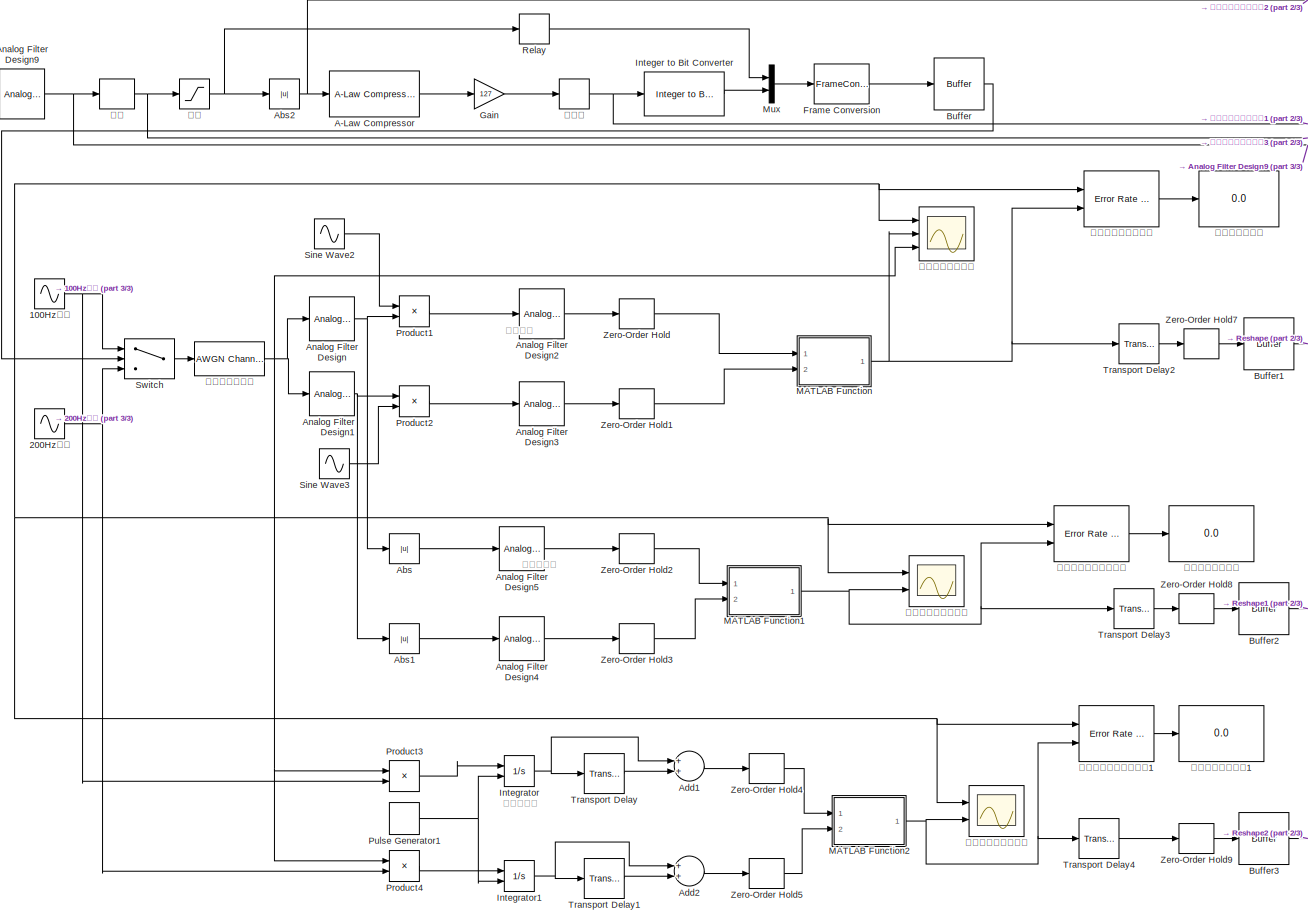
[diagram: root canvas - part 1/3, center side, full height]
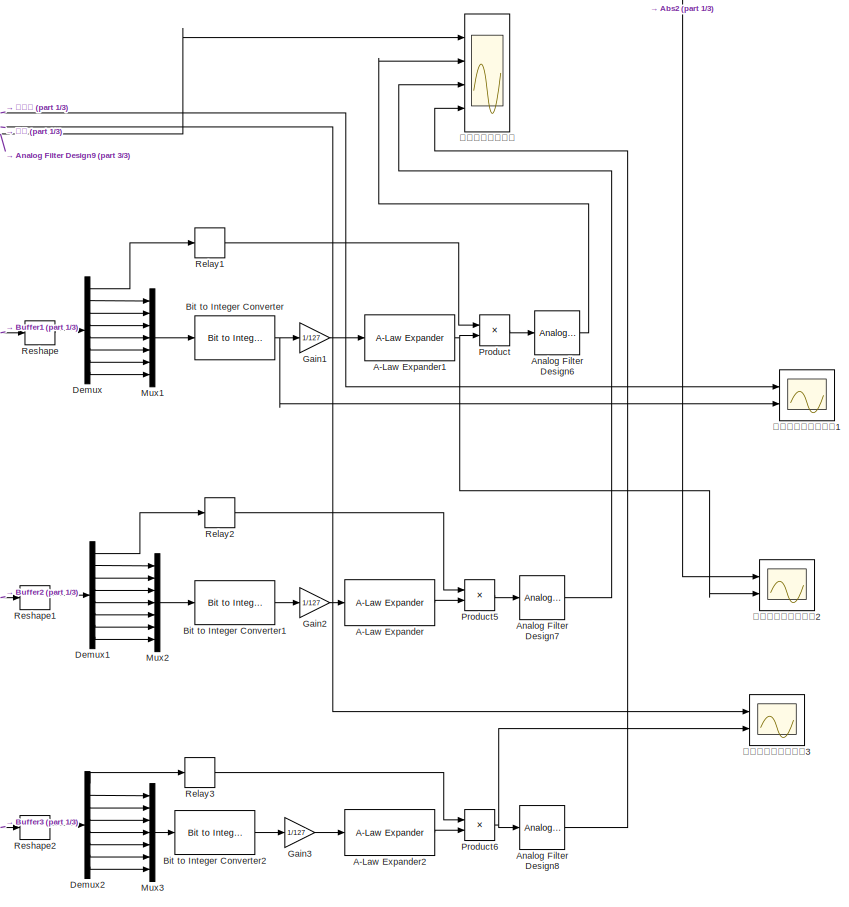
[diagram: root canvas - part 2/3, right side, full height]
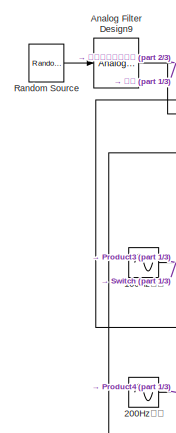
[diagram: root canvas - part 3/3, top left region]
MODEL slx_1557c7430c75
KIND model
CONFIG AbsTol = auto
CONFIG EnableMultiTasking = off
CONFIG FixedStep = auto
CONFIG MaxStep = auto
CONFIG MinStep = auto
CONFIG RelTol = 1e-3
CONFIG SampleTimeConstraint = Unconstrained
CONFIG Solver = VariableStepAuto
CONFIG SolverName = VariableStepAuto
CONFIG StartTime = 0.0
CONFIG StopTime = 160
BLOCK [Sin] 100Hz载波
  Frequency = 100*2*pi
  Ports = [0, 1]
  SampleTime = 0.0001
BLOCK [Sin] 200Hz载波
  Frequency = 200*2*pi
  Ports = [0, 1]
  SampleTime = 0.0001
BLOCK [Reference] A-Law Compressor  REF=commsrccod2/A-Law
Compressor
  Ports = [1, 1]
  SourceBlock = commsrccod2/A-Law\nCompressor
  SourceProductBaseCode = CM
  SourceProductName = Communications System Toolbox
  SourceType = A-Law Compressor
BLOCK [Reference] A-Law Expander  REF=commsrccod2/A-Law
Expander
  Ports = [1, 1]
  SourceBlock = commsrccod2/A-Law\nExpander
  SourceProductBaseCode = CM
  SourceProductName = Communications System Toolbox
  SourceType = A-Law Expander
BLOCK [Reference] A-Law Expander1  REF=commsrccod2/A-Law
Expander
  Ports = [1, 1]
  SourceBlock = commsrccod2/A-Law\nExpander
  SourceProductBaseCode = CM
  SourceProductName = Communications System Toolbox
  SourceType = A-Law Expander
BLOCK [Reference] A-Law Expander2  REF=commsrccod2/A-Law
Expander
  Ports = [1, 1]
  SourceBlock = commsrccod2/A-Law\nExpander
  SourceProductBaseCode = CM
  SourceProductName = Communications System Toolbox
  SourceType = A-Law Expander
BLOCK [Abs] Abs
  SaturateOnIntegerOverflow = off
BLOCK [Abs] Abs1
  SaturateOnIntegerOverflow = off
BLOCK [Abs] Abs2
  SaturateOnIntegerOverflow = off
BLOCK [Sum] Add1
  InputSameDT = off
  OutDataTypeStr = Inherit: Inherit via internal rule
  Ports = [2, 1]
  SaturateOnIntegerOverflow = off
BLOCK [Sum] Add2
  InputSameDT = off
  OutDataTypeStr = Inherit: Inherit via internal rule
  Ports = [2, 1]
  SaturateOnIntegerOverflow = off
BLOCK [Reference] Analog Filter Design  REF=dsparch4/Analog
Filter Design
  Ports = [1, 1]
  SourceBlock = dsparch4/Analog\nFilter Design
  SourceProductBaseCode = DS
  SourceProductName = DSP System Toolbox
  SourceType = Analog Filter Design
BLOCK [Reference] Analog Filter Design1  REF=dsparch4/Analog
Filter Design
  Ports = [1, 1]
  SourceBlock = dsparch4/Analog\nFilter Design
  SourceProductBaseCode = DS
  SourceProductName = DSP System Toolbox
  SourceType = Analog Filter Design
BLOCK [Reference] Analog Filter Design2  REF=dsparch4/Analog
Filter Design
  Ports = [1, 1]
  SourceBlock = dsparch4/Analog\nFilter Design
  SourceProductBaseCode = DS
  SourceProductName = DSP System Toolbox
  SourceType = Analog Filter Design
BLOCK [Reference] Analog Filter Design3  REF=dsparch4/Analog
Filter Design
  Ports = [1, 1]
  SourceBlock = dsparch4/Analog\nFilter Design
  SourceProductBaseCode = DS
  SourceProductName = DSP System Toolbox
  SourceType = Analog Filter Design
BLOCK [Reference] Analog Filter Design4  REF=dsparch4/Analog
Filter Design
  Ports = [1, 1]
  SourceBlock = dsparch4/Analog\nFilter Design
  SourceProductBaseCode = DS
  SourceProductName = DSP System Toolbox
  SourceType = Analog Filter Design
BLOCK [Reference] Analog Filter Design5  REF=dsparch4/Analog
Filter Design
  Ports = [1, 1]
  SourceBlock = dsparch4/Analog\nFilter Design
  SourceProductBaseCode = DS
  SourceProductName = DSP System Toolbox
  SourceType = Analog Filter Design
BLOCK [Reference] Analog Filter Design6  REF=dsparch4/Analog
Filter Design
  Ports = [1, 1]
  SourceBlock = dsparch4/Analog\nFilter Design
  SourceProductBaseCode = DS
  SourceProductName = DSP System Toolbox
  SourceType = Analog Filter Design
BLOCK [Reference] Analog Filter Design7  REF=dsparch4/Analog
Filter Design
  Ports = [1, 1]
  SourceBlock = dsparch4/Analog\nFilter Design
  SourceProductBaseCode = DS
  SourceProductName = DSP System Toolbox
  SourceType = Analog Filter Design
BLOCK [Reference] Analog Filter Design8  REF=dsparch4/Analog
Filter Design
  Ports = [1, 1]
  SourceBlock = dsparch4/Analog\nFilter Design
  SourceProductBaseCode = DS
  SourceProductName = DSP System Toolbox
  SourceType = Analog Filter Design
BLOCK [Reference] Analog Filter Design9  REF=dsparch4/Analog
Filter Design
  Ports = [1, 1]
  SourceBlock = dsparch4/Analog\nFilter Design
  SourceProductBaseCode = DS
  SourceProductName = DSP System Toolbox
  SourceType = Analog Filter Design
BLOCK [Reference] Bit to Integer Converter  REF=commutil2/Bit to Integer
Converter
  Ports = [1, 1]
  SourceBlock = commutil2/Bit to Integer\nConverter
  SourceProductBaseCode = CM
  SourceProductName = Communications System Toolbox
  SourceType = Bit to Integer Converter
BLOCK [Reference] Bit to Integer Converter1  REF=commutil2/Bit to Integer
Converter
  Ports = [1, 1]
  SourceBlock = commutil2/Bit to Integer\nConverter
  SourceProductBaseCode = CM
  SourceProductName = Communications System Toolbox
  SourceType = Bit to Integer Converter
BLOCK [Reference] Bit to Integer Converter2  REF=commutil2/Bit to Integer
Converter
  Ports = [1, 1]
  SourceBlock = commutil2/Bit to Integer\nConverter
  SourceProductBaseCode = CM
  SourceProductName = Communications System Toolbox
  SourceType = Bit to Integer Converter
BLOCK [Buffer] Buffer
  N = 1
  OutputFrames = off
BLOCK [Buffer] Buffer1
  N = 8
  OutputFrames = off
BLOCK [Buffer] Buffer2
  N = 8
  OutputFrames = off
BLOCK [Buffer] Buffer3
  N = 8
  OutputFrames = off
BLOCK [Demux] Demux
  DisplayOption = bar
  Outputs = 8
  Ports = [1, 8]
BLOCK [Demux] Demux1
  DisplayOption = bar
  Outputs = 8
  Ports = [1, 8]
BLOCK [Demux] Demux2
  DisplayOption = bar
  Outputs = 8
  Ports = [1, 8]
BLOCK [FrameConversion] Frame Conversion
  Ports = [1, 1]
BLOCK [Gain] Gain
  Gain = 127
  OutDataTypeStr = Inherit: Inherit via internal rule
  ParamDataTypeStr = Inherit: Inherit via internal rule
  SaturateOnIntegerOverflow = off
BLOCK [Gain] Gain1
  Gain = 1/127
  OutDataTypeStr = Inherit: Inherit via internal rule
  ParamDataTypeStr = Inherit: Inherit via internal rule
  SaturateOnIntegerOverflow = off
BLOCK [Gain] Gain2
  Gain = 1/127
  OutDataTypeStr = Inherit: Inherit via internal rule
  ParamDataTypeStr = Inherit: Inherit via internal rule
  SaturateOnIntegerOverflow = off
BLOCK [Gain] Gain3
  Gain = 1/127
  OutDataTypeStr = Inherit: Inherit via internal rule
  ParamDataTypeStr = Inherit: Inherit via internal rule
  SaturateOnIntegerOverflow = off
BLOCK [Reference] Integer to Bit Converter  REF=commutil2/Integer to Bit
Converter
  Ports = [1, 1]
  SourceBlock = commutil2/Integer to Bit\nConverter
  SourceProductBaseCode = CM
  SourceProductName = Communications System Toolbox
  SourceType = Integer to Bit Converter
BLOCK [Integrator] Integrator
  ExternalReset = rising
  Ports = [2, 1]
BLOCK [Integrator] Integrator1
  ExternalReset = rising
  Ports = [2, 1]
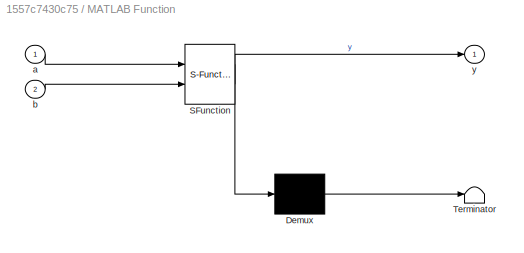
BLOCK [SubSystem] MATLAB Function
  ErrorFcn = Stateflow.Translate.translate
  PermitHierarchicalResolution = ExplicitOnly
  Ports = [2, 1]
  RequestExecContextInheritance = off
  SFBlockType = MATLAB Function
  TreatAsAtomicUnit = on
BLOCK [Demux] MATLAB Function/ Demux 
  Outputs = 1
  Ports = [1, 1]
BLOCK [S-Function] MATLAB Function/ SFunction 
  EnableBusSupport = on
  FunctionName = sf_sfun
  PortCounts = [2 2]
  Ports = [2, 2]
  SFcnIsStateOwnerBlock = off
  SFunctionDeploymentMode = off
  Tag = Stateflow S-Function BFSKandPCMOnlyChangeSource 2
BLOCK [Terminator] MATLAB Function/ Terminator 
BLOCK [Inport] MATLAB Function/a
  IconDisplay = Port number
BLOCK [Inport] MATLAB Function/b
  IconDisplay = Port number
  Port = 2
BLOCK [Outport] MATLAB Function/y
  IconDisplay = Port number
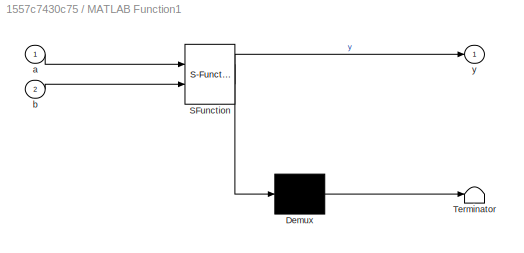
BLOCK [SubSystem] MATLAB Function1
  ErrorFcn = Stateflow.Translate.translate
  PermitHierarchicalResolution = ExplicitOnly
  Ports = [2, 1]
  RequestExecContextInheritance = off
  SFBlockType = MATLAB Function
  TreatAsAtomicUnit = on
BLOCK [Demux] MATLAB Function1/ Demux 
  Outputs = 1
  Ports = [1, 1]
BLOCK [S-Function] MATLAB Function1/ SFunction 
  EnableBusSupport = on
  FunctionName = sf_sfun
  PortCounts = [2 2]
  Ports = [2, 2]
  SFcnIsStateOwnerBlock = off
  SFunctionDeploymentMode = off
  Tag = Stateflow S-Function BFSKandPCMOnlyChangeSource 1
BLOCK [Terminator] MATLAB Function1/ Terminator 
BLOCK [Inport] MATLAB Function1/a
  IconDisplay = Port number
BLOCK [Inport] MATLAB Function1/b
  IconDisplay = Port number
  Port = 2
BLOCK [Outport] MATLAB Function1/y
  IconDisplay = Port number
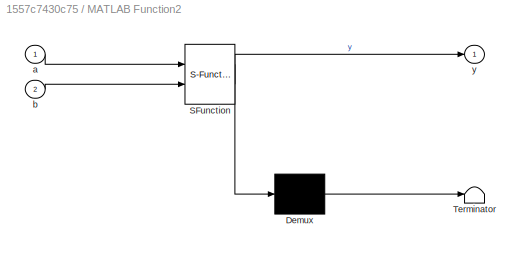
BLOCK [SubSystem] MATLAB Function2
  ErrorFcn = Stateflow.Translate.translate
  PermitHierarchicalResolution = ExplicitOnly
  Ports = [2, 1]
  RequestExecContextInheritance = off
  SFBlockType = MATLAB Function
  TreatAsAtomicUnit = on
BLOCK [Demux] MATLAB Function2/ Demux 
  Outputs = 1
  Ports = [1, 1]
BLOCK [S-Function] MATLAB Function2/ SFunction 
  EnableBusSupport = on
  FunctionName = sf_sfun
  PortCounts = [2 2]
  Ports = [2, 2]
  SFcnIsStateOwnerBlock = off
  SFunctionDeploymentMode = off
  Tag = Stateflow S-Function BFSKandPCMOnlyChangeSource 3
BLOCK [Terminator] MATLAB Function2/ Terminator 
BLOCK [Inport] MATLAB Function2/a
  IconDisplay = Port number
BLOCK [Inport] MATLAB Function2/b
  IconDisplay = Port number
  Port = 2
BLOCK [Outport] MATLAB Function2/y
  IconDisplay = Port number
BLOCK [Mux] Mux
  DisplayOption = bar
  Inputs = 2
  Ports = [2, 1]
BLOCK [Mux] Mux1
  DisplayOption = bar
  Inputs = 7
  Ports = [7, 1]
BLOCK [Mux] Mux2
  DisplayOption = bar
  Inputs = 7
  Ports = [7, 1]
BLOCK [Mux] Mux3
  DisplayOption = bar
  Inputs = 7
  Ports = [7, 1]
BLOCK [Product] Product
  InputSameDT = off
  OutDataTypeStr = Inherit: Inherit via internal rule
  Ports = [2, 1]
  SaturateOnIntegerOverflow = off
BLOCK [Product] Product1
  InputSameDT = off
  OutDataTypeStr = Inherit: Inherit via internal rule
  Ports = [2, 1]
  RndMeth = Floor
  SaturateOnIntegerOverflow = off
BLOCK [Product] Product2
  InputSameDT = off
  OutDataTypeStr = Inherit: Inherit via internal rule
  Ports = [2, 1]
  RndMeth = Floor
  SaturateOnIntegerOverflow = off
BLOCK [Product] Product3
  InputSameDT = off
  OutDataTypeStr = Inherit: Inherit via internal rule
  Ports = [2, 1]
  RndMeth = Floor
  SaturateOnIntegerOverflow = off
BLOCK [Product] Product4
  InputSameDT = off
  OutDataTypeStr = Inherit: Inherit via internal rule
  Ports = [2, 1]
  RndMeth = Floor
  SaturateOnIntegerOverflow = off
BLOCK [Product] Product5
  InputSameDT = off
  OutDataTypeStr = Inherit: Inherit via internal rule
  Ports = [2, 1]
  SaturateOnIntegerOverflow = off
BLOCK [Product] Product6
  InputSameDT = off
  OutDataTypeStr = Inherit: Inherit via internal rule
  Ports = [2, 1]
  SaturateOnIntegerOverflow = off
BLOCK [DiscretePulseGenerator] Pulse Generator1
  Period = 0.2
  Ports = [0, 1]
  PulseType = Time based
BLOCK [Reference] Random Source  REF=dspsrcs4/Random
Source
  Ports = [0, 1]
  SourceBlock = dspsrcs4/Random\nSource
  SourceProductBaseCode = DS
  SourceProductName = DSP System Toolbox
  SourceType = Random Source
  UserDataPersistent = on
BLOCK [Relay] Relay
  InputProcessing = Elements as channels (sample based)
BLOCK [Relay] Relay1
  OffOutputValue = -1
BLOCK [Relay] Relay2
  OffOutputValue = -1
BLOCK [Relay] Relay3
  OffOutputValue = -1
BLOCK [Reshape] Reshape
  Ports = [1, 1]
BLOCK [Reshape] Reshape1
  Ports = [1, 1]
BLOCK [Reshape] Reshape2
  Ports = [1, 1]
BLOCK [Sin] Sine Wave2
  Frequency = 100*2*pi
  Ports = [0, 1]
  SampleTime = 0.0001
BLOCK [Sin] Sine Wave3
  Frequency = 200*2*pi
  Ports = [0, 1]
  SampleTime = 0.0001
BLOCK [Switch] Switch
  Criteria = u2 > Threshold
  InputSameDT = off
  SaturateOnIntegerOverflow = off
BLOCK [TransportDelay] Transport Delay
  DelayTime = 0.02
  Ports = [1, 1]
BLOCK [TransportDelay] Transport Delay1
  DelayTime = 0.02
  Ports = [1, 1]
BLOCK [TransportDelay] Transport Delay2
  DelayTime = 1.2
  Ports = [1, 1]
BLOCK [TransportDelay] Transport Delay3
  DelayTime = 1.2
  Ports = [1, 1]
BLOCK [TransportDelay] Transport Delay4
  DelayTime = 1.4
  Ports = [1, 1]
BLOCK [ZeroOrderHold] Zero-Order Hold
  SampleTime = 0.2
BLOCK [ZeroOrderHold] Zero-Order Hold1
  SampleTime = 0.2
BLOCK [ZeroOrderHold] Zero-Order Hold2
  SampleTime = 0.2
BLOCK [ZeroOrderHold] Zero-Order Hold3
  SampleTime = 0.2
BLOCK [ZeroOrderHold] Zero-Order Hold4
  SampleTime = 0.2
BLOCK [ZeroOrderHold] Zero-Order Hold5
  SampleTime = 0.2
BLOCK [ZeroOrderHold] Zero-Order Hold7
  SampleTime = 0.2
BLOCK [ZeroOrderHold] Zero-Order Hold8
  SampleTime = 0.2
BLOCK [ZeroOrderHold] Zero-Order Hold9
  SampleTime = 0.2
BLOCK [Scope] 发送接收波形比较
  Floating = off
  NumInputPorts = 4
  Ports = [4]
  ScopeSpecificationString = Simulink.scopes.TimeScopeBlockCfg('CurrentConfiguration', extmgr.ConfigurationSet(extmgr.Configuration('Core','General UI',true,'FigureColor',[0.941176470588235 0.941176470588235 0.941176470588235]),extmgr.Configuration('Core','Source UI',true),extmgr.Configuration('Sources','WiredSimulink',true,'DataLoggingVariableName','ScopeData1'),extmgr.Configuration('Visuals','Time Domain',true,'SerializedDi...<+4085ch>
BLOCK [ZeroOrderHold] 抽样
  SampleTime = 1.6
BLOCK [Scope] 最佳接收机码型比较
  Floating = off
  NumInputPorts = 2
  Ports = [2]
  ScopeSpecificationString = Simulink.scopes.TimeScopeBlockCfg('CurrentConfiguration', extmgr.ConfigurationSet(extmgr.Configuration('Core','General UI',true,'FigureColor',[0.941176470588235 0.941176470588235 0.941176470588235]),extmgr.Configuration('Core','Source UI',true),extmgr.Configuration('Sources','WiredSimulink',true,'DataLoggingVariableName','ScopeData1'),extmgr.Configuration('Visuals','Time Domain',true,'SerializedDi...<+2377ch>
BLOCK [Display] 最佳接收机误码率1
  Decimation = 1
  Ports = [1]
BLOCK [Reference] 最佳接收机误码率计算1  REF=commsink2/Error Rate
Calculation
  Ports = [2, 1]
  SourceBlock = commsink2/Error Rate\nCalculation
  SourceProductBaseCode = CM
  SourceProductName = Communications System Toolbox
  SourceType = Error Rate Calculation
BLOCK [Scope] 相干解调码型比较
  Floating = off
  NumInputPorts = 3
  Ports = [3]
  ScopeSpecificationString = Simulink.scopes.TimeScopeBlockCfg('CurrentConfiguration', extmgr.ConfigurationSet(extmgr.Configuration('Core','General UI',true,'FigureColor',[0.941176470588235 0.941176470588235 0.941176470588235]),extmgr.Configuration('Core','Source UI',true),extmgr.Configuration('Sources','WiredSimulink',true,'DataLoggingVariableName','ScopeData1'),extmgr.Configuration('Visuals','Time Domain',true,'SerializedDi...<+3261ch>
BLOCK [Display] 相干解调误码率
  Decimation = 1
  Ports = [1]
BLOCK [Reference] 相干解调误码率计算   REF=commsink2/Error Rate
Calculation
  Ports = [2, 1]
  SourceBlock = commsink2/Error Rate\nCalculation
  SourceProductBaseCode = CM
  SourceProductName = Communications System Toolbox
  SourceType = Error Rate Calculation
BLOCK [Quantizer] 离散化
  QuantizationInterval = 1
BLOCK [Saturate] 限幅
  InputPortMap = u0
  LowerLimit = -1
  Ports = [1, 1]
  UpperLimit = 1
BLOCK [Scope] 非相干解调码型比较
  Floating = off
  NumInputPorts = 2
  Ports = [2]
  ScopeSpecificationString = Simulink.scopes.TimeScopeBlockCfg('CurrentConfiguration', extmgr.ConfigurationSet(extmgr.Configuration('Core','General UI',true,'FigureColor',[0.941176470588235 0.941176470588235 0.941176470588235]),extmgr.Configuration('Core','Source UI',true),extmgr.Configuration('Sources','WiredSimulink',true,'DataLoggingVariableName','ScopeData1'),extmgr.Configuration('Visuals','Time Domain',true,'SerializedDi...<+2368ch>
BLOCK [Scope] 非相干解调码型比较1
  Floating = off
  NumInputPorts = 2
  Ports = [2]
  ScopeSpecificationString = Simulink.scopes.TimeScopeBlockCfg('CurrentConfiguration', extmgr.ConfigurationSet(extmgr.Configuration('Core','General UI',true,'FigureColor',[0.941176470588235 0.941176470588235 0.941176470588235]),extmgr.Configuration('Core','Source UI',true),extmgr.Configuration('Sources','WiredSimulink',true,'DataLoggingVariableName','ScopeData1'),extmgr.Configuration('Visuals','Time Domain',true,'SerializedDi...<+2365ch>
BLOCK [Scope] 非相干解调码型比较2
  Floating = off
  NumInputPorts = 2
  Ports = [2]
  ScopeSpecificationString = Simulink.scopes.TimeScopeBlockCfg('CurrentConfiguration', extmgr.ConfigurationSet(extmgr.Configuration('Core','General UI',true,'FigureColor',[0.941176470588235 0.941176470588235 0.941176470588235]),extmgr.Configuration('Core','Source UI',true),extmgr.Configuration('Sources','WiredSimulink',true,'DataLoggingVariableName','ScopeData2'),extmgr.Configuration('Visuals','Time Domain',true,'SerializedDi...<+2369ch>
BLOCK [Scope] 非相干解调码型比较3
  Floating = off
  NumInputPorts = 2
  Ports = [2]
  ScopeSpecificationString = Simulink.scopes.TimeScopeBlockCfg('CurrentConfiguration', extmgr.ConfigurationSet(extmgr.Configuration('Core','General UI',true,'FigureColor',[0.941176470588235 0.941176470588235 0.941176470588235]),extmgr.Configuration('Core','Source UI',true),extmgr.Configuration('Sources','WiredSimulink',true,'DataLoggingVariableName','ScopeData3'),extmgr.Configuration('Visuals','Time Domain',true,'SerializedDi...<+2360ch>
BLOCK [Display] 非相干解调误码率
  Decimation = 1
  Ports = [1]
BLOCK [Reference] 非相干解调误码率计算  REF=commsink2/Error Rate
Calculation
  Ports = [2, 1]
  SourceBlock = commsink2/Error Rate\nCalculation
  SourceProductBaseCode = CM
  SourceProductName = Communications System Toolbox
  SourceType = Error Rate Calculation
BLOCK [Reference] 高斯白噪声信道   REF=commchan3/AWGN
Channel
  Ports = [1, 1]
  SourceBlock = commchan3/AWGN\nChannel
  SourceProductBaseCode = CM
  SourceProductName = Communications System Toolbox
  SourceType = AWGN Channel
  UserDataPersistent = on
ANNOTATION (root): 相干解调
ANNOTATION (root): 最佳接收机
ANNOTATION (root): 非相干解调
NET 100Hz载波:1 -> Product3:2, Switch:1
NET 200Hz载波:1 -> Product4:2, Switch:3
LINE A-Law Compressor:1 -> Gain:1
NET A-Law Expander1:1 -> Product:2, 非相干解调码型比较2:2
LINE A-Law Expander2:1 -> Product6:2
LINE A-Law Expander:1 -> Product5:2
LINE Abs1:1 -> Analog Filter Design4:1
NET Abs2:1 -> A-Law Compressor:1, 非相干解调码型比较2:1
LINE Abs:1 -> Analog Filter Design5:1
LINE Add1:1 -> Zero-Order Hold4:1
LINE Add2:1 -> Zero-Order Hold5:1
NET Analog Filter Design1:1 -> Abs1:1, Product2:1
LINE Analog Filter Design2:1 -> Zero-Order Hold:1
LINE Analog Filter Design3:1 -> Zero-Order Hold1:1
LINE Analog Filter Design4:1 -> Zero-Order Hold3:1
LINE Analog Filter Design5:1 -> Zero-Order Hold2:1
LINE Analog Filter Design6:1 -> 发送接收波形比较:2
LINE Analog Filter Design7:1 -> 发送接收波形比较:3
LINE Analog Filter Design8:1 -> 发送接收波形比较:4
NET Analog Filter Design9:1 -> 发送接收波形比较:1, 抽样:1
NET Analog Filter Design:1 -> Abs:1, Product1:2
LINE Bit to Integer Converter1:1 -> Gain2:1
LINE Bit to Integer Converter2:1 -> Gain3:1
NET Bit to Integer Converter:1 -> Gain1:1, 非相干解调码型比较1:2
LINE Buffer1:1 -> Reshape:1
LINE Buffer2:1 -> Reshape1:1
LINE Buffer3:1 -> Reshape2:1
NET Buffer:1 -> Switch:2, 最佳接收机码型比较:1, 最佳接收机误码率计算1:1, 相干解调码型比较:1, 相干解调误码率计算 :1, 非相干解调码型比较:1, 非相干解调误码率计算:1
LINE Demux1:1 -> Relay2:1
LINE Demux1:2 -> Mux2:1
LINE Demux1:3 -> Mux2:2
LINE Demux1:4 -> Mux2:3
LINE Demux1:5 -> Mux2:4
LINE Demux1:6 -> Mux2:5
LINE Demux1:7 -> Mux2:6
LINE Demux1:8 -> Mux2:7
LINE Demux2:1 -> Relay3:1
LINE Demux2:2 -> Mux3:1
LINE Demux2:3 -> Mux3:2
LINE Demux2:4 -> Mux3:3
LINE Demux2:5 -> Mux3:4
LINE Demux2:6 -> Mux3:5
LINE Demux2:7 -> Mux3:6
LINE Demux2:8 -> Mux3:7
LINE Demux:1 -> Relay1:1
LINE Demux:2 -> Mux1:1
LINE Demux:3 -> Mux1:2
LINE Demux:4 -> Mux1:3
LINE Demux:5 -> Mux1:4
LINE Demux:6 -> Mux1:5
LINE Demux:7 -> Mux1:6
LINE Demux:8 -> Mux1:7
LINE Frame Conversion:1 -> Buffer:1
LINE Gain1:1 -> A-Law Expander1:1
LINE Gain2:1 -> A-Law Expander:1
LINE Gain3:1 -> A-Law Expander2:1
LINE Gain:1 -> 离散化:1
LINE Integer to Bit Converter:1 -> Mux:2
NET Integrator1:1 -> Add2:1, Transport Delay1:1
NET Integrator:1 -> Add1:1, Transport Delay:1
NET MATLAB Function1:1 -> Transport Delay3:1, 非相干解调码型比较:2, 非相干解调误码率计算:2
NET MATLAB Function2:1 -> Transport Delay4:1, 最佳接收机码型比较:2, 最佳接收机误码率计算1:2
NET MATLAB Function:1 -> Transport Delay2:1, 相干解调码型比较:2, 相干解调误码率计算 :2
LINE Mux1:1 -> Bit to Integer Converter:1
LINE Mux2:1 -> Bit to Integer Converter1:1
LINE Mux3:1 -> Bit to Integer Converter2:1
LINE Mux:1 -> Frame Conversion:1
LINE Product1:1 -> Analog Filter Design2:1
LINE Product2:1 -> Analog Filter Design3:1
LINE Product3:1 -> Integrator:1
LINE Product4:1 -> Integrator1:1
LINE Product5:1 -> Analog Filter Design7:1
NET Product6:1 -> Analog Filter Design8:1, 非相干解调码型比较3:2
LINE Product:1 -> Analog Filter Design6:1
NET Pulse Generator1:1 -> Integrator1:2, Integrator:2
LINE Random Source:1 -> Analog Filter Design9:1
LINE Relay1:1 -> Product:1
LINE Relay2:1 -> Product5:1
LINE Relay3:1 -> Product6:1
LINE Relay:1 -> Mux:1
LINE Reshape1:1 -> Demux1:1
LINE Reshape2:1 -> Demux2:1
LINE Reshape:1 -> Demux:1
LINE Sine Wave2:1 -> Product1:1
LINE Sine Wave3:1 -> Product2:2
LINE Switch:1 -> 高斯白噪声信道 :1
LINE Transport Delay1:1 -> Add2:2
LINE Transport Delay2:1 -> Zero-Order Hold7:1
LINE Transport Delay3:1 -> Zero-Order Hold8:1
LINE Transport Delay4:1 -> Zero-Order Hold9:1
LINE Transport Delay:1 -> Add1:2
LINE Zero-Order Hold1:1 -> MATLAB Function:2
LINE Zero-Order Hold2:1 -> MATLAB Function1:1
LINE Zero-Order Hold3:1 -> MATLAB Function1:2
LINE Zero-Order Hold4:1 -> MATLAB Function2:1
LINE Zero-Order Hold5:1 -> MATLAB Function2:2
LINE Zero-Order Hold7:1 -> Buffer1:1
LINE Zero-Order Hold8:1 -> Buffer2:1
LINE Zero-Order Hold9:1 -> Buffer3:1
LINE Zero-Order Hold:1 -> MATLAB Function:1
NET 抽样:1 -> 限幅:1, 非相干解调码型比较3:1
LINE 最佳接收机误码率计算1:1 -> 最佳接收机误码率1:1
LINE 相干解调误码率计算 :1 -> 相干解调误码率:1
NET 离散化:1 -> Integer to Bit Converter:1, 非相干解调码型比较1:1
NET 限幅:1 -> Abs2:1, Relay:1
LINE 非相干解调误码率计算:1 -> 非相干解调误码率:1
NET 高斯白噪声信道 :1 -> Analog Filter Design1:1, Analog Filter Design:1, Product3:1, Product4:1, 相干解调码型比较:3
note: NET lines group one-source signal fan-out (src -> all destinations, sorted); 1:1 wires keep LINE
CHART MATLAB Function1 states=1 transitions=1
  STATE_LABEL 'eML_blk_kernel()'
  STATE_LABEL 'SCRIPT:\nfunction y = fcn(a, b)\nif(a>b)\n    y=1;\nelse\n    y=0;\nend\n'
CHART MATLAB Function states=1 transitions=1
  STATE_LABEL 'eML_blk_kernel()'
  STATE_LABEL 'SCRIPT:\nfunction y = fcn(a, b)\nif(a>b)\n    y=1;\nelse\n    y=0;\nend\n'
CHART MATLAB Function2 states=1 transitions=1
  STATE_LABEL 'eML_blk_kernel()'
  STATE_LABEL 'SCRIPT:\nfunction y = fcn(a, b)\nif(a>b)\n    y=1;\nelse\n    y=0;\nend\n'
